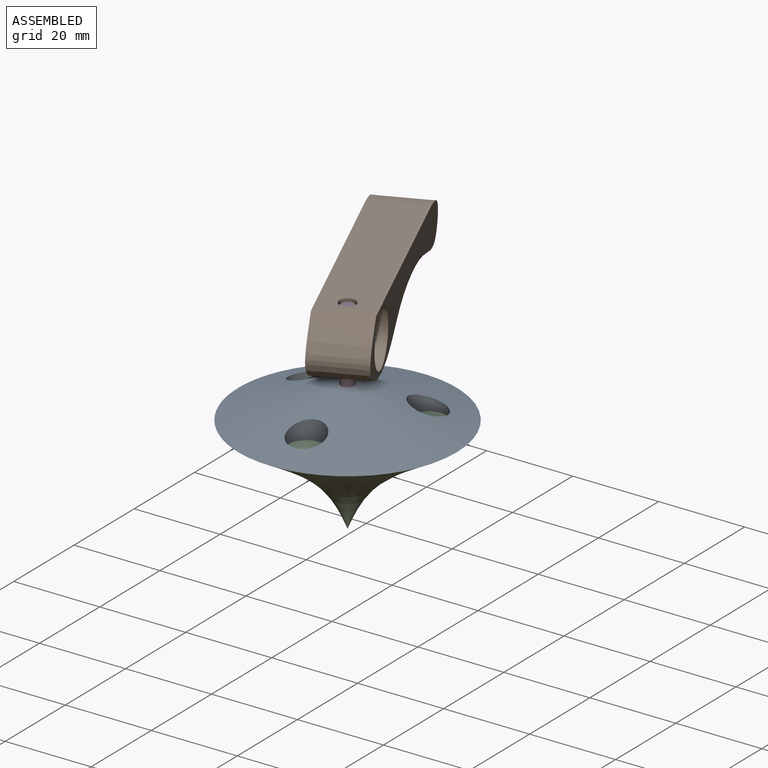
[diagram: assembled view]
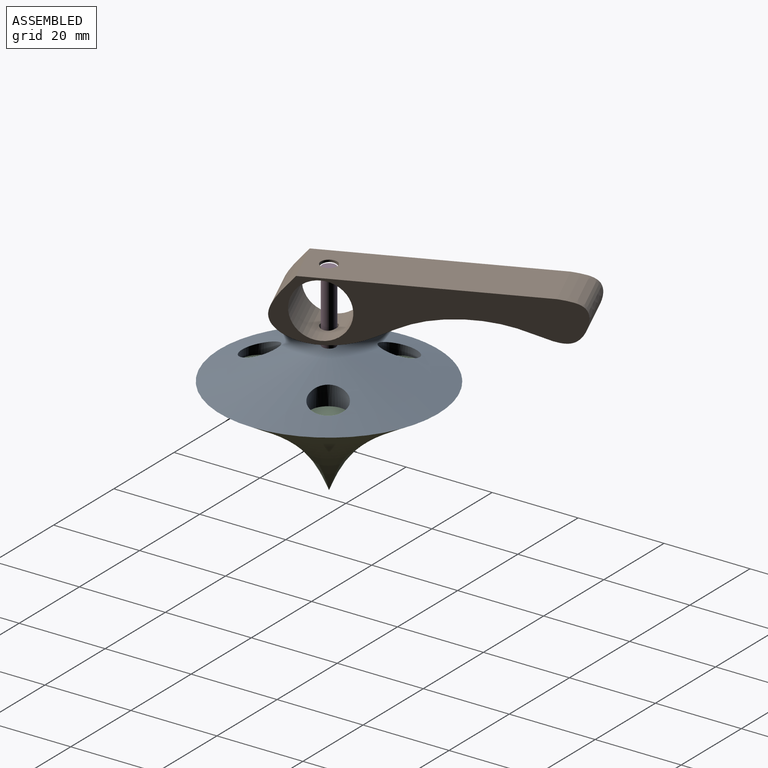
[diagram: assembled view, second angle]
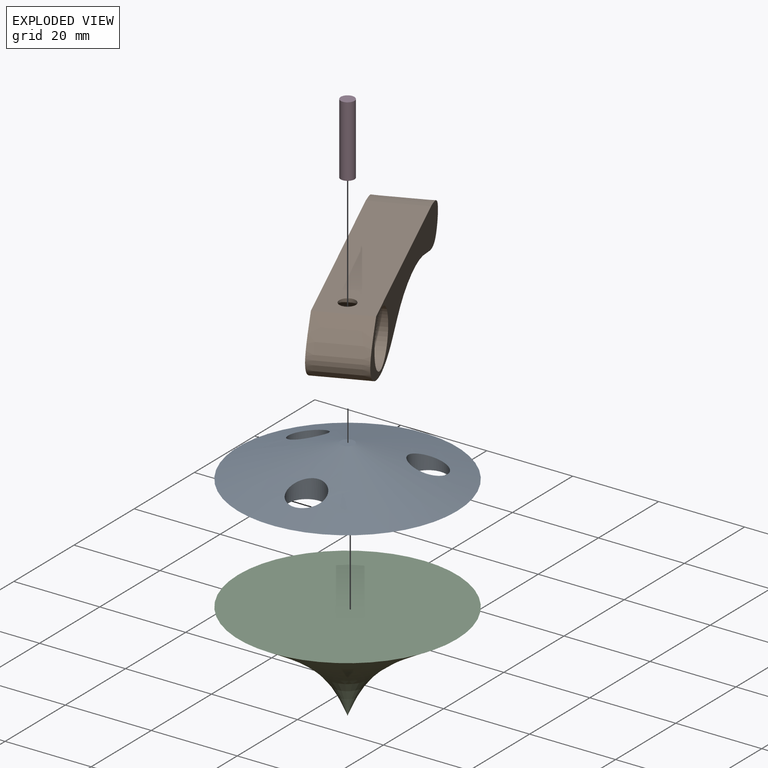
[diagram: exploded view]
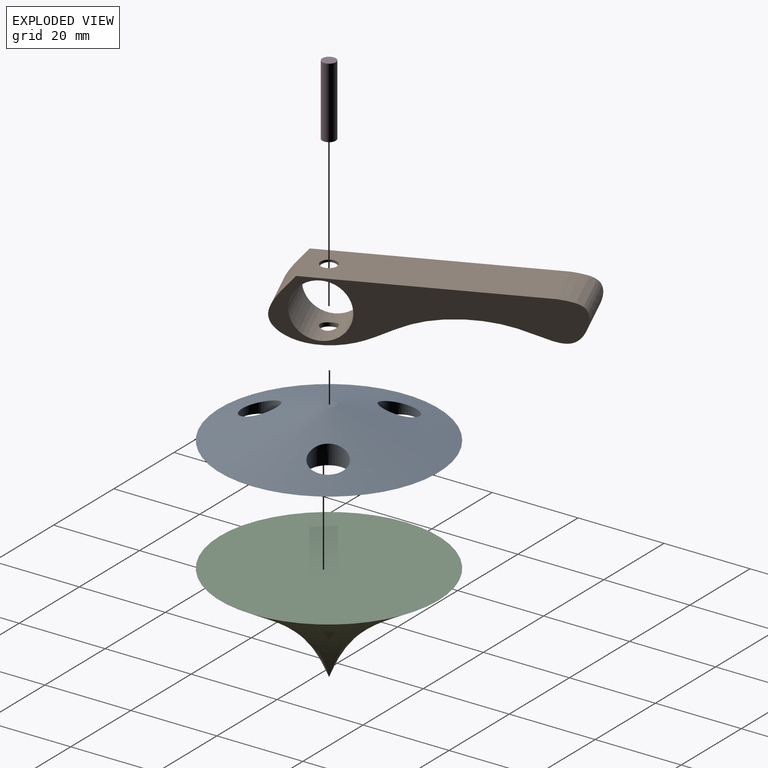
[diagram: exploded view, second angle]
ASSEMBLY  parts=4 mates=5
PART A: 6 faces, bbox 50.8x50.8x7.6 mm
  f0: plane 3.18x3.18mm, normal (0,0,1), area 7.9mm2, adj f2
  f1: plane 50.8x50.8mm, normal (0,0,-1), area 1863.6mm2, adj f2,f3,f4,f5
  f2: cone r=1.59mm half-angle=72.3deg, axis (0,0,-1), area 1948.2mm2, adj f0,f1,f3,f4,f5
  f3: cylinder r=4.16mm len=8.32mm, axis (0,0,-1), area 81.5mm2, adj f1,f2
  f4: cylinder r=4.16mm len=8.32mm, axis (0,0,-1), area 81.5mm2, adj f1,f2
  f5: cylinder r=4.16mm len=8.32mm, axis (0,0,-1), area 81.6mm2, adj f1,f2
PART B: 7 faces, bbox 63.4x12.7x14.5 mm
  f0: extruded ~62.56x14.05mm, area 1114.3mm2, adj f2,f3,f4,f6
  f1: cylinder r=6.35mm len=12.7mm, axis (0,-1,0), area 483.6mm2, adj f3,f4,f5,f6
  f2: plane 50.8x12.7mm, normal (0,0,1), area 633.8mm2, adj f0,f3,f4,f5
  f3: plane 63.39x14.46mm, normal (0,-1,0), area 438.1mm2, adj f0,f1,f2
  f4: plane 63.39x14.46mm, normal (0,1,0), area 438.1mm2, adj f0,f1,f2
  f5: cylinder r=1.91mm len=3.81mm, axis (0,0,1), area 7.6mm2, adj f1,f2
  f6: cylinder r=1.91mm len=3.81mm, axis (0,0,1), area 11.5mm2, adj f0,f1
PART C: 2 faces, bbox 50.8x50.8x22.9 mm
  f0: revolved ~50.8x50.8mm, area 2464.4mm2, adj f1
  f1: plane 50.8x50.8mm, normal (0,0,1), area 2026.8mm2, adj f0
PART D: 3 faces, bbox 3.2x3.2x16.5 mm
  f0: cylinder r=1.59mm len=16.51mm, axis (0,0,-1), area 164.7mm2, adj f1,f2
  f1: plane 3.18x3.18mm, normal (0,0,1), area 7.9mm2, adj f0
  f2: plane 3.18x3.18mm, normal (0,0,-1), area 7.9mm2, adj f0
PLACE A t=(-31.27,-15.8,-44.45)mm
PLACE B rot(axis=(0,0,-1),66.9deg) t=(-28.03,-6.53,-19.75)mm
PLACE C t=(-31.27,-15.8,-99.06)mm fixed
PLACE D t=(-31.27,-15.8,-36.83)mm
MATE cylindrical C.f1 <-> A.f2  axis (0,0,1) through (-31.27,-15.8,-44.45)mm
MATE planar A.f2 <-> C.f1  axis (0,0,-1) through (-31.27,-15.8,-44.45)mm
MATE cylindrical A.f2 <-> D.f0  axis (0,0,-1) through (-31.27,-15.8,-36.83)mm
MATE planar A.f2 <-> D.f0  axis (0,0,-1) through (-31.27,-15.8,-36.83)mm
MATE cylindrical D.f0 <-> B.f5  axis (0,0,-1) through (-31.27,-15.8,-28.58)mm
